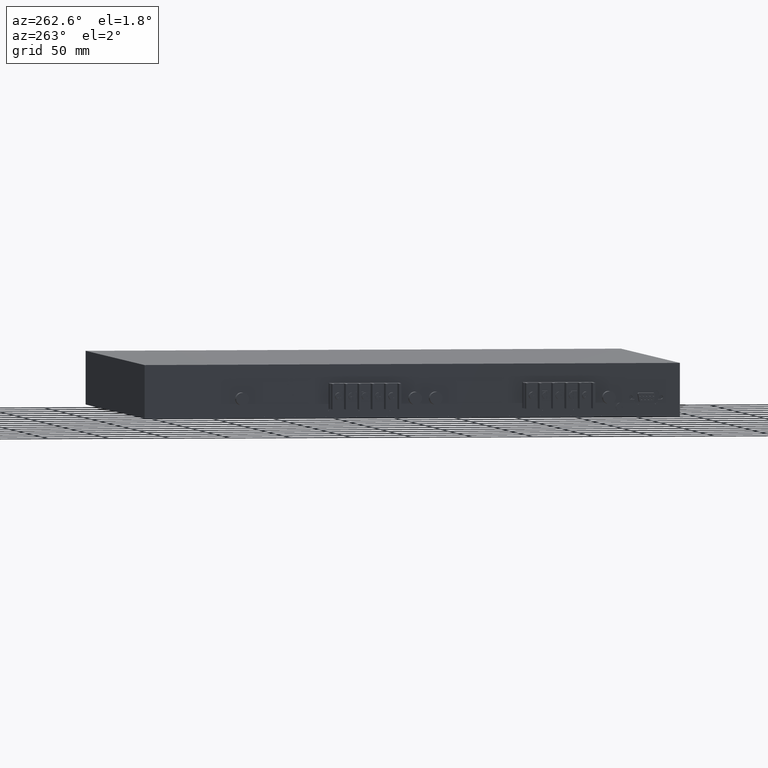
[diagram: clean part render]
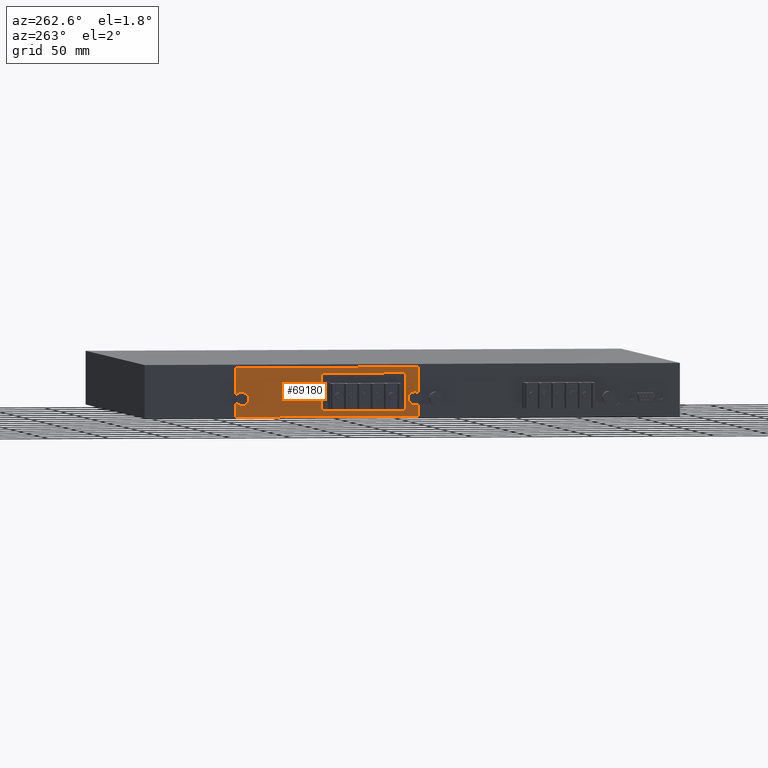
[diagram: same view with one face highlighted and labeled with its STEP entity id]
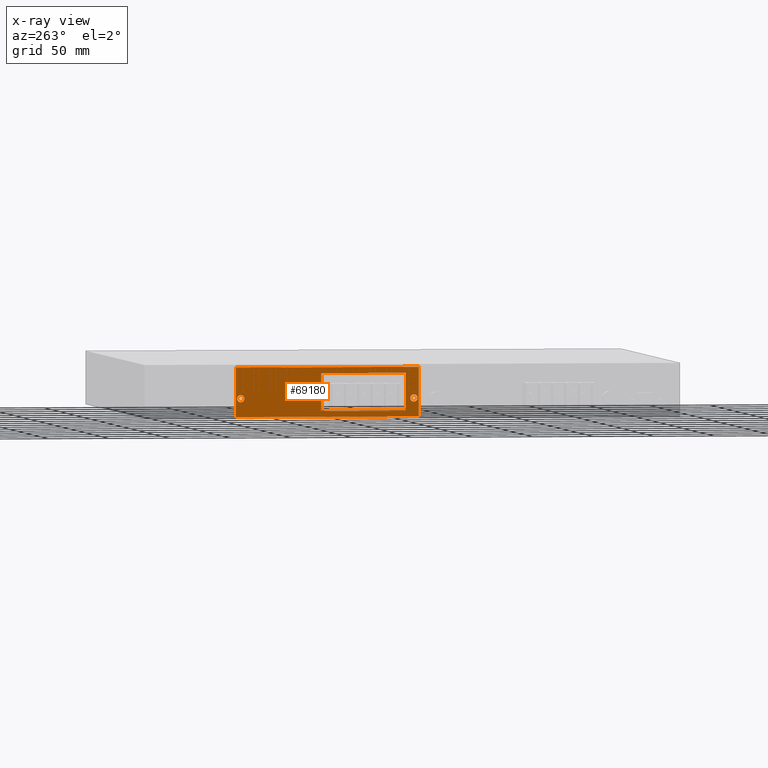
[diagram: x-ray of the same camera — body ghosted, the highlighted face saturated]
A machine part, auxiliary view. The second image highlights one B-rep face of the part: STEP entity #69180.
The next image is the same camera in x-ray: the body ghosted, the highlighted face saturated — about 0% of this face is hidden behind the body in this view.
In plain terms, the highlighted planar face has unit normal (-1, 0, 0).
Its self-contained STEP definition (entity closure, byte-faithful):
#68150=CARTESIAN_POINT('',(149.681079192565,-39.5089339263395,
0.09999999998027));
#68160=DIRECTION('',(0.,0.,-1.));
#68170=DIRECTION('',(-1.,0.,0.));
#68180=AXIS2_PLACEMENT_3D('',#68150,#68160,#68170);
#68190=PLANE('',#68180);
#68200=CARTESIAN_POINT('',(145.906013042565,0.,0.09999999998027));
#68210=DIRECTION('',(0.,1.,0.));
#68220=VECTOR('',#68210,1.);
#68230=LINE('',#68200,#68220);
#68240=CARTESIAN_POINT('',(145.906013042565,-38.4963677763395,
0.09999999998027));
#68250=VERTEX_POINT('',#68240);
#68260=CARTESIAN_POINT('',(145.906013042565,2.0036322236605,
0.09999999998027));
#68270=VERTEX_POINT('',#68260);
#68280=EDGE_CURVE('',#68250,#68270,#68230,.T.);
#68290=ORIENTED_EDGE('',*,*,#68280,.F.);
#68300=CARTESIAN_POINT('',(0.,2.0036322236605,0.09999999998027));
#68310=DIRECTION('',(-1.,0.,0.));
#68320=VECTOR('',#68310,1.);
#68330=LINE('',#68300,#68320);
#68340=CARTESIAN_POINT('',(-5.09398695743528,2.0036322236605,
0.09999999998027));
#68350=VERTEX_POINT('',#68340);
#68360=EDGE_CURVE('',#68270,#68350,#68330,.T.);
#68370=ORIENTED_EDGE('',*,*,#68360,.F.);
#68380=CARTESIAN_POINT('',(-5.09398695743528,0.,0.09999999998027));
#68390=DIRECTION('',(0.,-1.,0.));
#68400=VECTOR('',#68390,1.);
#68410=LINE('',#68380,#68400);
#68420=CARTESIAN_POINT('',(-5.09398695743535,-38.4963677763395,
0.09999999998027));
#68430=VERTEX_POINT('',#68420);
#68440=EDGE_CURVE('',#68350,#68430,#68410,.T.);
#68450=ORIENTED_EDGE('',*,*,#68440,.F.);
#68460=CARTESIAN_POINT('',(0.,-38.4963677763395,0.09999999998027));
#68470=DIRECTION('',(1.,0.,0.));
#68480=VECTOR('',#68470,1.);
#68490=LINE('',#68460,#68480);
#68500=EDGE_CURVE('',#68430,#68250,#68490,.T.);
#68510=ORIENTED_EDGE('',*,*,#68500,.F.);
#68520=EDGE_LOOP('',(#68510,#68450,#68370,#68290));
#68530=FACE_OUTER_BOUND('',#68520,.T.);
#68540=CARTESIAN_POINT('',(141.906013042565,-23.4963677763394,
0.0999999999802696));
#68550=DIRECTION('',(0.,0.,1.));
#68560=DIRECTION('',(1.,0.,0.));
#68570=AXIS2_PLACEMENT_3D('',#68540,#68550,#68560);
#68580=CIRCLE('',#68570,2.99999999999999);
#68590=CARTESIAN_POINT('',(144.906013042565,-23.4963677763394,
0.0999999999802696));
#68600=VERTEX_POINT('',#68590);
#68610=CARTESIAN_POINT('',(138.906013042565,-23.4963677763394,
0.0999999999802696));
#68620=VERTEX_POINT('',#68610);
#68630=EDGE_CURVE('',#68600,#68620,#68580,.T.);
#68640=ORIENTED_EDGE('',*,*,#68630,.T.);
#68650=EDGE_CURVE('',#68620,#68600,#68580,.T.);
#68660=ORIENTED_EDGE('',*,*,#68650,.T.);
#68670=EDGE_LOOP('',(#68660,#68640));
#68680=FACE_BOUND('',#68670,.T.);
#68690=CARTESIAN_POINT('',(-1.09398695743536,-23.4963677763395,
0.0999999999802696));
#68700=DIRECTION('',(0.,0.,1.));
#68710=DIRECTION('',(1.,0.,0.));
#68720=AXIS2_PLACEMENT_3D('',#68690,#68700,#68710);
#68730=CIRCLE('',#68720,2.99999999999999);
#68740=CARTESIAN_POINT('',(-4.09398695743535,-23.4963677763395,
0.0999999999802696));
#68750=VERTEX_POINT('',#68740);
#68760=CARTESIAN_POINT('',(1.90601304256463,-23.4963677763395,
0.0999999999802696));
#68770=VERTEX_POINT('',#68760);
#68780=EDGE_CURVE('',#68750,#68770,#68730,.T.);
#68790=ORIENTED_EDGE('',*,*,#68780,.T.);
#68800=EDGE_CURVE('',#68770,#68750,#68730,.T.);
#68810=ORIENTED_EDGE('',*,*,#68800,.T.);
#68820=EDGE_LOOP('',(#68810,#68790));
#68830=FACE_BOUND('',#68820,.T.);
#68840=CARTESIAN_POINT('',(5.40601304256532,0.,0.09999999998027));
#68850=DIRECTION('',(0.,1.,0.));
#68860=VECTOR('',#68850,1.);
#68870=LINE('',#68840,#68860);
#68880=CARTESIAN_POINT('',(5.40601304256532,-33.7963677763396,
0.09999999998027));
#68890=VERTEX_POINT('',#68880);
#68900=CARTESIAN_POINT('',(5.40601304256532,-2.79636777633966,
0.09999999998027));
#68910=VERTEX_POINT('',#68900);
#68920=EDGE_CURVE('',#68890,#68910,#68870,.T.);
#68930=ORIENTED_EDGE('',*,*,#68920,.F.);
#68940=CARTESIAN_POINT('',(0.,-2.79636777633966,0.09999999998027));
#68950=DIRECTION('',(1.,0.,0.));
#68960=VECTOR('',#68950,1.);
#68970=LINE('',#68940,#68960);
#68980=CARTESIAN_POINT('',(75.406013042565,-2.79636777633966,
0.09999999998027));
#68990=VERTEX_POINT('',#68980);
#69000=EDGE_CURVE('',#68910,#68990,#68970,.T.);
#69010=ORIENTED_EDGE('',*,*,#69000,.F.);
#69020=CARTESIAN_POINT('',(75.406013042565,0.,0.09999999998027));
#69030=DIRECTION('',(0.,-1.,0.));
#69040=VECTOR('',#69030,1.);
#69050=LINE('',#69020,#69040);
#69060=CARTESIAN_POINT('',(75.406013042565,-33.7963677763396,
0.09999999998027));
#69070=VERTEX_POINT('',#69060);
#69080=EDGE_CURVE('',#68990,#69070,#69050,.T.);
#69090=ORIENTED_EDGE('',*,*,#69080,.F.);
#69100=CARTESIAN_POINT('',(0.,-33.7963677763396,0.09999999998027));
#69110=DIRECTION('',(-1.,0.,0.));
#69120=VECTOR('',#69110,1.);
#69130=LINE('',#69100,#69120);
#69140=EDGE_CURVE('',#69070,#68890,#69130,.T.);
#69150=ORIENTED_EDGE('',*,*,#69140,.F.);
#69160=EDGE_LOOP('',(#69150,#69090,#69010,#68930));
#69170=FACE_BOUND('',#69160,.T.);
#69180=ADVANCED_FACE('',(#68530,#68680,#68830,#69170),#68190,.T.);